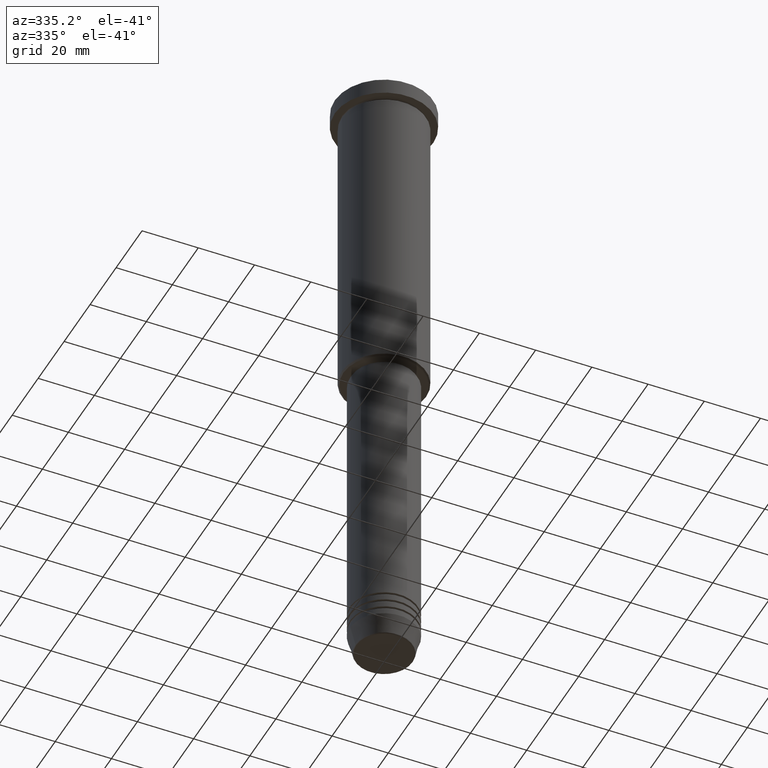
[diagram: clean part render]
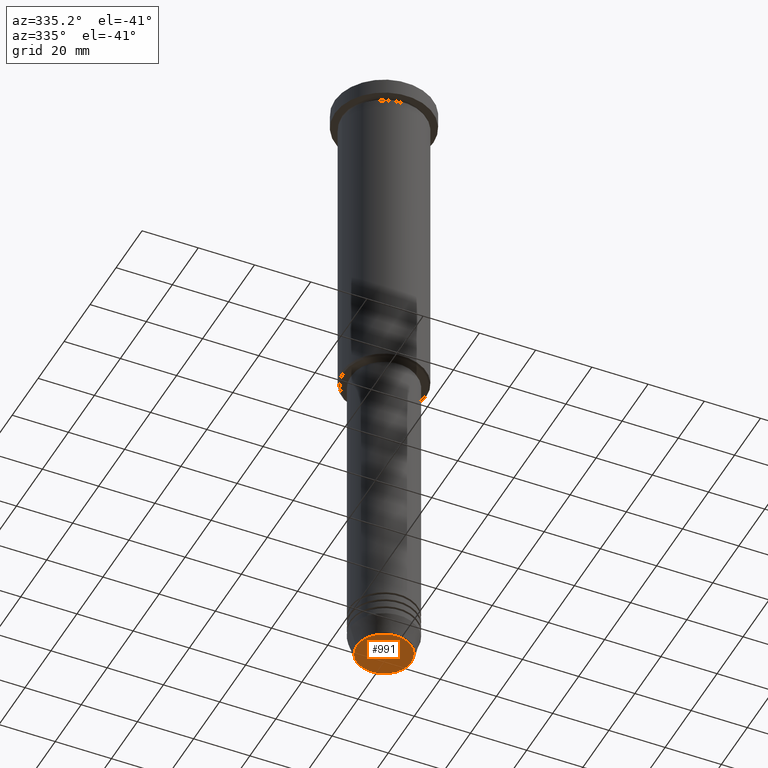
[diagram: same view with one face highlighted and labeled with its STEP entity id]
A machine part, auxiliary view. The second image highlights one B-rep face of the part: STEP entity #991.
In plain terms, the highlighted planar face has unit normal (0, -0, 1).
Its self-contained STEP definition (entity closure, byte-faithful):
#85 = AXIS2_PLACEMENT_3D ( 'NONE', #487, #1118, #309 ) ;
#95 = DIRECTION ( 'NONE',  ( 1.000000000000000000, 0.000000000000000000, 0.000000000000000000 ) ) ;
#121 = AXIS2_PLACEMENT_3D ( 'NONE', #534, #694, #520 ) ;
#192 = CARTESIAN_POINT ( 'NONE',  ( 0.000000000000000000, 0.000000000000000000, -230.9999999999999716 ) ) ;
#292 = EDGE_CURVE ( 'NONE', #1020, #760, #602, .T. ) ;
#309 = DIRECTION ( 'NONE',  ( 1.000000000000000000, 0.000000000000000000, 0.000000000000000000 ) ) ;
#338 = CARTESIAN_POINT ( 'NONE',  ( 9.740692158992667160, 0.000000000000000000, -230.9999999999999716 ) ) ;
#487 = CARTESIAN_POINT ( 'NONE',  ( 0.000000000000000000, 0.000000000000000000, -230.9999999999999716 ) ) ;
#520 = DIRECTION ( 'NONE',  ( 1.000000000000000000, 0.000000000000000000, 0.000000000000000000 ) ) ;
#534 = CARTESIAN_POINT ( 'NONE',  ( 0.000000000000000000, 0.000000000000000000, -230.9999999999999716 ) ) ;
#602 = CIRCLE ( 'NONE', #85, 9.740692158992667160 ) ;
#656 = CIRCLE ( 'NONE', #121, 9.740692158992667160 ) ;
#694 = DIRECTION ( 'NONE',  ( 0.000000000000000000, 0.000000000000000000, -1.000000000000000000 ) ) ;
#707 = ORIENTED_EDGE ( 'NONE', *, *, #292, .T. ) ;
#736 = FACE_OUTER_BOUND ( 'NONE', #1168, .T. ) ;
#749 = PLANE ( 'NONE',  #1166 ) ;
#760 = VERTEX_POINT ( 'NONE', #338 ) ;
#763 = EDGE_CURVE ( 'NONE', #760, #1020, #656, .T. ) ;
#991 = ADVANCED_FACE ( 'NONE', ( #736 ), #749, .F. ) ;
#1006 = CARTESIAN_POINT ( 'NONE',  ( -9.740692158992667160, 1.222463696683475788E-15, -230.9999999999999716 ) ) ;
#1020 = VERTEX_POINT ( 'NONE', #1006 ) ;
#1113 = DIRECTION ( 'NONE',  ( 0.000000000000000000, -0.000000000000000000, 1.000000000000000000 ) ) ;
#1118 = DIRECTION ( 'NONE',  ( 0.000000000000000000, 0.000000000000000000, -1.000000000000000000 ) ) ;
#1119 = ORIENTED_EDGE ( 'NONE', *, *, #763, .T. ) ;
#1166 = AXIS2_PLACEMENT_3D ( 'NONE', #192, #1113, #95 ) ;
#1168 = EDGE_LOOP ( 'NONE', ( #1119, #707 ) ) ;